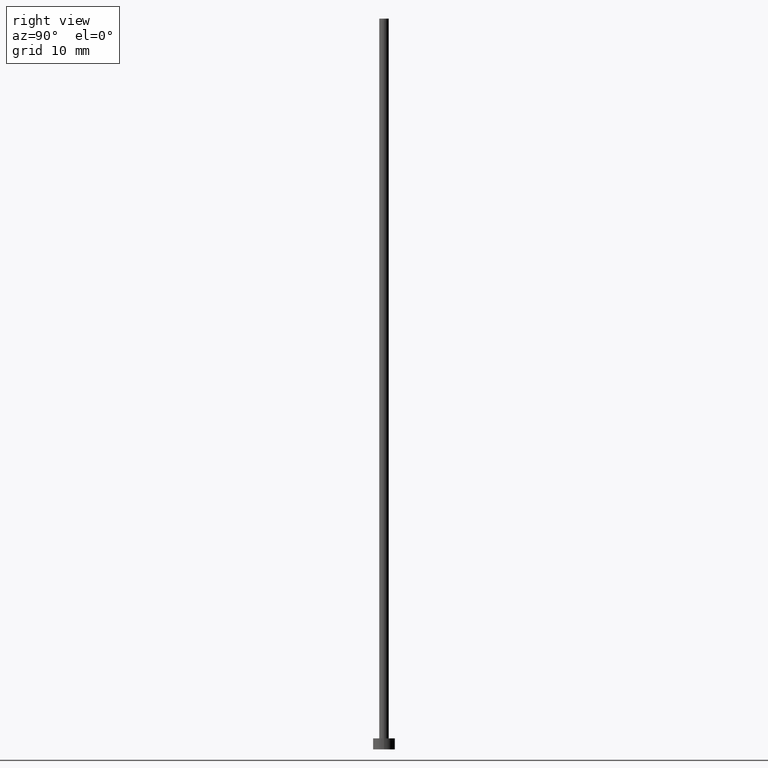
[diagram: clean part render]
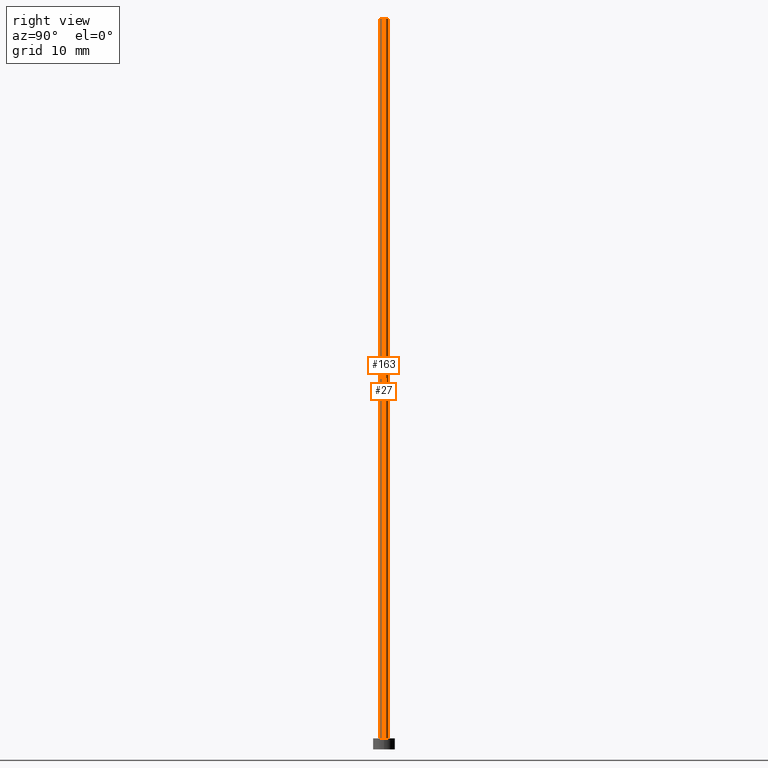
[diagram: same view with one multi-face feature highlighted, each face labeled with its STEP entity id]
A machine part, right view. The highlighted faces form ONE feature: a constant-radius fillet chain: 2 tangent blend faces with common blend radius 0.65 mm. The faces share edges in the B-rep.
Their STEP definitions:
[1] entity #27 (Cylinder):
#1 = ORIENTED_EDGE ( 'NONE', *, *, #129, .T. ) ;
#3 = ORIENTED_EDGE ( 'NONE', *, *, #210, .T. ) ;
#24 = DIRECTION ( 'NONE',  ( -0.000000000000000000, -0.000000000000000000, -1.000000000000000000 ) ) ;
#27 = ADVANCED_FACE ( 'NONE', ( #101 ), #125, .T. ) ;
#29 = LINE ( 'NONE', #105, #165 ) ;
#33 = DIRECTION ( 'NONE',  ( 1.000000000000000000, 0.000000000000000000, 0.000000000000000000 ) ) ;
#35 = AXIS2_PLACEMENT_3D ( 'NONE', #107, #133, #33 ) ;
#36 = LINE ( 'NONE', #112, #187 ) ;
#40 = VERTEX_POINT ( 'NONE', #221 ) ;
#42 = CARTESIAN_POINT ( 'NONE',  ( 0.6500000000000000222, 7.960204194457795477E-17, 100.0000000000000000 ) ) ;
#51 = DIRECTION ( 'NONE',  ( 1.000000000000000000, 0.000000000000000000, 0.000000000000000000 ) ) ;
#57 = VERTEX_POINT ( 'NONE', #42 ) ;
#67 = DIRECTION ( 'NONE',  ( 0.000000000000000000, 0.000000000000000000, 1.000000000000000000 ) ) ;
#69 = CIRCLE ( 'NONE', #35, 0.6500000000000000222 ) ;
#77 = CIRCLE ( 'NONE', #154, 0.6500000000000000222 ) ;
#98 = ORIENTED_EDGE ( 'NONE', *, *, #185, .F. ) ;
#99 = VERTEX_POINT ( 'NONE', #225 ) ;
#101 = FACE_OUTER_BOUND ( 'NONE', #216, .T. ) ;
#105 = CARTESIAN_POINT ( 'NONE',  ( 0.6500000000000000222, 7.960204194457795477E-17, 100.0000000000000000 ) ) ;
#107 = CARTESIAN_POINT ( 'NONE',  ( 0.000000000000000000, 0.000000000000000000, 1.500000000000000000 ) ) ;
#111 = AXIS2_PLACEMENT_3D ( 'NONE', #172, #205, #206 ) ;
#112 = CARTESIAN_POINT ( 'NONE',  ( -0.6500000000000000222, 0.000000000000000000, 100.0000000000000000 ) ) ;
#125 = CYLINDRICAL_SURFACE ( 'NONE', #111, 0.6500000000000000222 ) ;
#129 = EDGE_CURVE ( 'NONE', #57, #99, #29, .T. ) ;
#133 = DIRECTION ( 'NONE',  ( 0.000000000000000000, 0.000000000000000000, 1.000000000000000000 ) ) ;
#138 = ORIENTED_EDGE ( 'NONE', *, *, #171, .F. ) ;
#154 = AXIS2_PLACEMENT_3D ( 'NONE', #157, #67, #51 ) ;
#157 = CARTESIAN_POINT ( 'NONE',  ( 0.000000000000000000, 0.000000000000000000, 100.0000000000000000 ) ) ;
#165 = VECTOR ( 'NONE', #24, 1000.000000000000000 ) ;
#171 = EDGE_CURVE ( 'NONE', #57, #40, #77, .T. ) ;
#172 = CARTESIAN_POINT ( 'NONE',  ( 0.000000000000000000, 0.000000000000000000, 100.0000000000000000 ) ) ;
#185 = EDGE_CURVE ( 'NONE', #40, #223, #36, .T. ) ;
#187 = VECTOR ( 'NONE', #208, 1000.000000000000000 ) ;
#205 = DIRECTION ( 'NONE',  ( -0.000000000000000000, -0.000000000000000000, -1.000000000000000000 ) ) ;
#206 = DIRECTION ( 'NONE',  ( -1.000000000000000000, 0.000000000000000000, 0.000000000000000000 ) ) ;
#208 = DIRECTION ( 'NONE',  ( -0.000000000000000000, -0.000000000000000000, -1.000000000000000000 ) ) ;
#210 = EDGE_CURVE ( 'NONE', #99, #223, #69, .T. ) ;
#213 = CARTESIAN_POINT ( 'NONE',  ( -0.6500000000000000222, 0.000000000000000000, 1.500000000000000000 ) ) ;
#216 = EDGE_LOOP ( 'NONE', ( #138, #1, #3, #98 ) ) ;
#221 = CARTESIAN_POINT ( 'NONE',  ( -0.6500000000000000222, 0.000000000000000000, 100.0000000000000000 ) ) ;
#223 = VERTEX_POINT ( 'NONE', #213 ) ;
#225 = CARTESIAN_POINT ( 'NONE',  ( 0.6500000000000000222, 7.960204194457795477E-17, 1.500000000000000000 ) ) ;
[2] entity #163 (Cylinder):
#7 = AXIS2_PLACEMENT_3D ( 'NONE', #14, #31, #175 ) ;
#12 = ORIENTED_EDGE ( 'NONE', *, *, #22, .T. ) ;
#14 = CARTESIAN_POINT ( 'NONE',  ( 0.000000000000000000, 0.000000000000000000, 100.0000000000000000 ) ) ;
#15 = DIRECTION ( 'NONE',  ( 0.000000000000000000, 0.000000000000000000, 1.000000000000000000 ) ) ;
#17 = CYLINDRICAL_SURFACE ( 'NONE', #7, 0.6500000000000000222 ) ;
#22 = EDGE_CURVE ( 'NONE', #223, #99, #240, .T. ) ;
#24 = DIRECTION ( 'NONE',  ( -0.000000000000000000, -0.000000000000000000, -1.000000000000000000 ) ) ;
#29 = LINE ( 'NONE', #105, #165 ) ;
#31 = DIRECTION ( 'NONE',  ( -0.000000000000000000, -0.000000000000000000, -1.000000000000000000 ) ) ;
#36 = LINE ( 'NONE', #112, #187 ) ;
#37 = CIRCLE ( 'NONE', #144, 0.6500000000000000222 ) ;
#40 = VERTEX_POINT ( 'NONE', #221 ) ;
#42 = CARTESIAN_POINT ( 'NONE',  ( 0.6500000000000000222, 7.960204194457795477E-17, 100.0000000000000000 ) ) ;
#57 = VERTEX_POINT ( 'NONE', #42 ) ;
#61 = ORIENTED_EDGE ( 'NONE', *, *, #252, .F. ) ;
#72 = FACE_OUTER_BOUND ( 'NONE', #248, .T. ) ;
#84 = ORIENTED_EDGE ( 'NONE', *, *, #185, .T. ) ;
#86 = DIRECTION ( 'NONE',  ( 1.000000000000000000, 0.000000000000000000, 0.000000000000000000 ) ) ;
#99 = VERTEX_POINT ( 'NONE', #225 ) ;
#105 = CARTESIAN_POINT ( 'NONE',  ( 0.6500000000000000222, 7.960204194457795477E-17, 100.0000000000000000 ) ) ;
#112 = CARTESIAN_POINT ( 'NONE',  ( -0.6500000000000000222, 0.000000000000000000, 100.0000000000000000 ) ) ;
#113 = DIRECTION ( 'NONE',  ( 1.000000000000000000, 0.000000000000000000, 0.000000000000000000 ) ) ;
#126 = AXIS2_PLACEMENT_3D ( 'NONE', #200, #128, #86 ) ;
#128 = DIRECTION ( 'NONE',  ( 0.000000000000000000, 0.000000000000000000, 1.000000000000000000 ) ) ;
#129 = EDGE_CURVE ( 'NONE', #57, #99, #29, .T. ) ;
#144 = AXIS2_PLACEMENT_3D ( 'NONE', #158, #15, #113 ) ;
#158 = CARTESIAN_POINT ( 'NONE',  ( 0.000000000000000000, 0.000000000000000000, 100.0000000000000000 ) ) ;
#163 = ADVANCED_FACE ( 'NONE', ( #72 ), #17, .T. ) ;
#165 = VECTOR ( 'NONE', #24, 1000.000000000000000 ) ;
#175 = DIRECTION ( 'NONE',  ( -1.000000000000000000, 0.000000000000000000, 0.000000000000000000 ) ) ;
#185 = EDGE_CURVE ( 'NONE', #40, #223, #36, .T. ) ;
#187 = VECTOR ( 'NONE', #208, 1000.000000000000000 ) ;
#200 = CARTESIAN_POINT ( 'NONE',  ( 0.000000000000000000, 0.000000000000000000, 1.500000000000000000 ) ) ;
#204 = ORIENTED_EDGE ( 'NONE', *, *, #129, .F. ) ;
#208 = DIRECTION ( 'NONE',  ( -0.000000000000000000, -0.000000000000000000, -1.000000000000000000 ) ) ;
#213 = CARTESIAN_POINT ( 'NONE',  ( -0.6500000000000000222, 0.000000000000000000, 1.500000000000000000 ) ) ;
#221 = CARTESIAN_POINT ( 'NONE',  ( -0.6500000000000000222, 0.000000000000000000, 100.0000000000000000 ) ) ;
#223 = VERTEX_POINT ( 'NONE', #213 ) ;
#225 = CARTESIAN_POINT ( 'NONE',  ( 0.6500000000000000222, 7.960204194457795477E-17, 1.500000000000000000 ) ) ;
#240 = CIRCLE ( 'NONE', #126, 0.6500000000000000222 ) ;
#248 = EDGE_LOOP ( 'NONE', ( #204, #61, #84, #12 ) ) ;
#252 = EDGE_CURVE ( 'NONE', #40, #57, #37, .T. ) ;